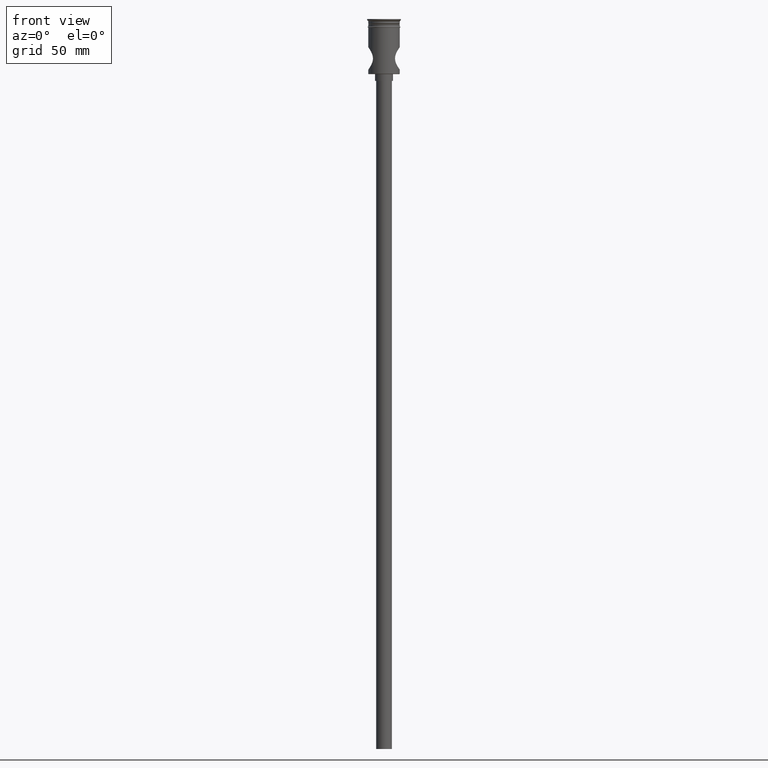
[diagram: clean part render]
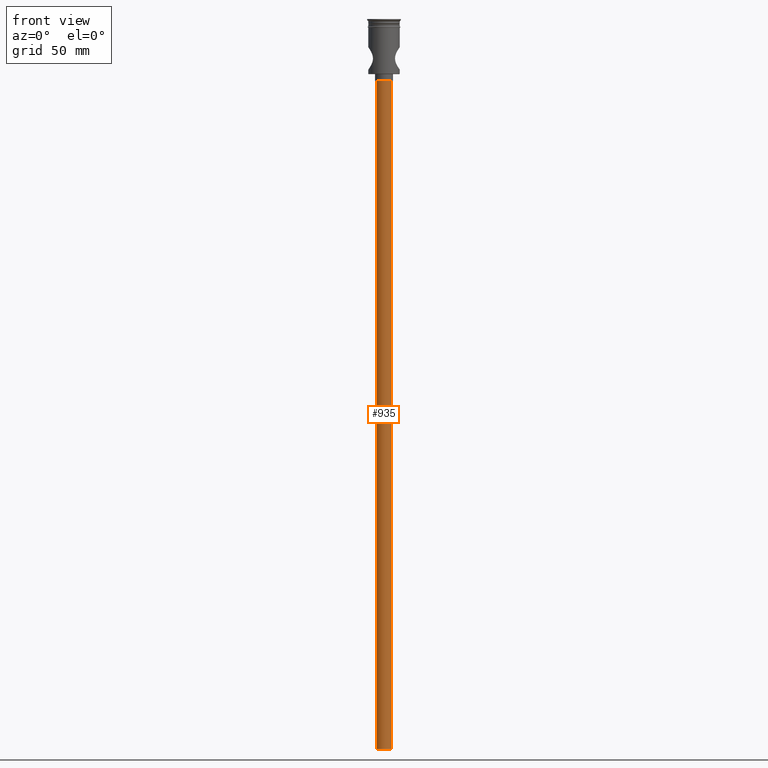
[diagram: same view with one face highlighted and labeled with its STEP entity id]
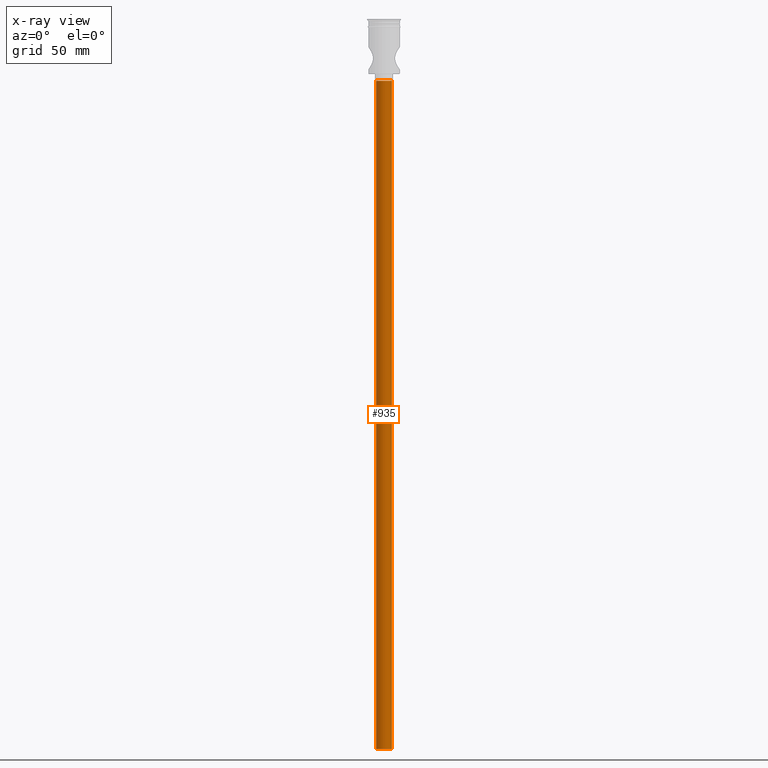
[diagram: x-ray of the same camera — body ghosted, the highlighted face saturated]
A machine part, front view. The second image highlights one B-rep face of the part: STEP entity #935.
The next image is the same camera in x-ray: the body ghosted, the highlighted face saturated — about 0% of this face is hidden behind the body in this view.
In plain terms, the highlighted cylindrical surface (edge-blend (fillet) strip) has radius 3.5 mm, axis along (-0, -0, 1).
Its self-contained STEP definition (entity closure, byte-faithful):
#43 = LINE ( 'NONE', #501, #405 ) ;
#96 = LINE ( 'NONE', #217, #1345 ) ;
#124 = EDGE_CURVE ( 'NONE', #236, #1414, #96, .T. ) ;
#199 = CARTESIAN_POINT ( 'NONE',  ( 3.500000000000000444, 0.000000000000000000, -27.50000000000000000 ) ) ;
#202 = DIRECTION ( 'NONE',  ( -0.000000000000000000, -0.000000000000000000, 1.000000000000000000 ) ) ;
#217 = CARTESIAN_POINT ( 'NONE',  ( 3.500000000000000444, 0.000000000000000000, -324.5000000000000000 ) ) ;
#236 = VERTEX_POINT ( 'NONE', #764 ) ;
#276 = EDGE_CURVE ( 'NONE', #1414, #900, #1270, .T. ) ;
#294 = EDGE_LOOP ( 'NONE', ( #1194, #1296, #828, #1257 ) ) ;
#326 = DIRECTION ( 'NONE',  ( -1.000000000000000000, 0.000000000000000000, 0.000000000000000000 ) ) ;
#343 = DIRECTION ( 'NONE',  ( 0.000000000000000000, 0.000000000000000000, -1.000000000000000000 ) ) ;
#405 = VECTOR ( 'NONE', #967, 1000.000000000000000 ) ;
#441 = DIRECTION ( 'NONE',  ( -0.000000000000000000, -0.000000000000000000, 1.000000000000000000 ) ) ;
#452 = DIRECTION ( 'NONE',  ( 0.000000000000000000, 0.000000000000000000, -1.000000000000000000 ) ) ;
#468 = DIRECTION ( 'NONE',  ( -1.000000000000000000, 0.000000000000000000, 0.000000000000000000 ) ) ;
#499 = EDGE_CURVE ( 'NONE', #648, #900, #43, .T. ) ;
#501 = CARTESIAN_POINT ( 'NONE',  ( -3.500000000000000444, 4.286263797015737088E-16, -324.5000000000000000 ) ) ;
#648 = VERTEX_POINT ( 'NONE', #1284 ) ;
#649 = DIRECTION ( 'NONE',  ( 1.000000000000000000, 0.000000000000000000, 0.000000000000000000 ) ) ;
#764 = CARTESIAN_POINT ( 'NONE',  ( 3.500000000000000444, 0.000000000000000000, -324.5000000000000000 ) ) ;
#810 = AXIS2_PLACEMENT_3D ( 'NONE', #1159, #343, #468 ) ;
#828 = ORIENTED_EDGE ( 'NONE', *, *, #124, .T. ) ;
#900 = VERTEX_POINT ( 'NONE', #1474 ) ;
#935 = ADVANCED_FACE ( 'NONE', ( #1003 ), #1448, .T. ) ;
#967 = DIRECTION ( 'NONE',  ( -0.000000000000000000, -0.000000000000000000, 1.000000000000000000 ) ) ;
#1003 = FACE_OUTER_BOUND ( 'NONE', #294, .T. ) ;
#1038 = EDGE_CURVE ( 'NONE', #236, #648, #1058, .T. ) ;
#1050 = CARTESIAN_POINT ( 'NONE',  ( 0.000000000000000000, 0.000000000000000000, -324.5000000000000000 ) ) ;
#1058 = CIRCLE ( 'NONE', #1178, 3.500000000000000444 ) ;
#1159 = CARTESIAN_POINT ( 'NONE',  ( 0.000000000000000000, 0.000000000000000000, -27.50000000000000000 ) ) ;
#1178 = AXIS2_PLACEMENT_3D ( 'NONE', #1050, #452, #326 ) ;
#1194 = ORIENTED_EDGE ( 'NONE', *, *, #499, .F. ) ;
#1257 = ORIENTED_EDGE ( 'NONE', *, *, #276, .T. ) ;
#1270 = CIRCLE ( 'NONE', #810, 3.500000000000000444 ) ;
#1284 = CARTESIAN_POINT ( 'NONE',  ( -3.500000000000000444, 4.286263797015737088E-16, -324.5000000000000000 ) ) ;
#1296 = ORIENTED_EDGE ( 'NONE', *, *, #1038, .F. ) ;
#1345 = VECTOR ( 'NONE', #441, 1000.000000000000000 ) ;
#1395 = AXIS2_PLACEMENT_3D ( 'NONE', #1466, #202, #649 ) ;
#1414 = VERTEX_POINT ( 'NONE', #199 ) ;
#1448 = CYLINDRICAL_SURFACE ( 'NONE', #1395, 3.500000000000000444 ) ;
#1466 = CARTESIAN_POINT ( 'NONE',  ( 0.000000000000000000, 0.000000000000000000, -324.5000000000000000 ) ) ;
#1474 = CARTESIAN_POINT ( 'NONE',  ( -3.500000000000000444, 4.286263797015737088E-16, -27.50000000000000000 ) ) ;